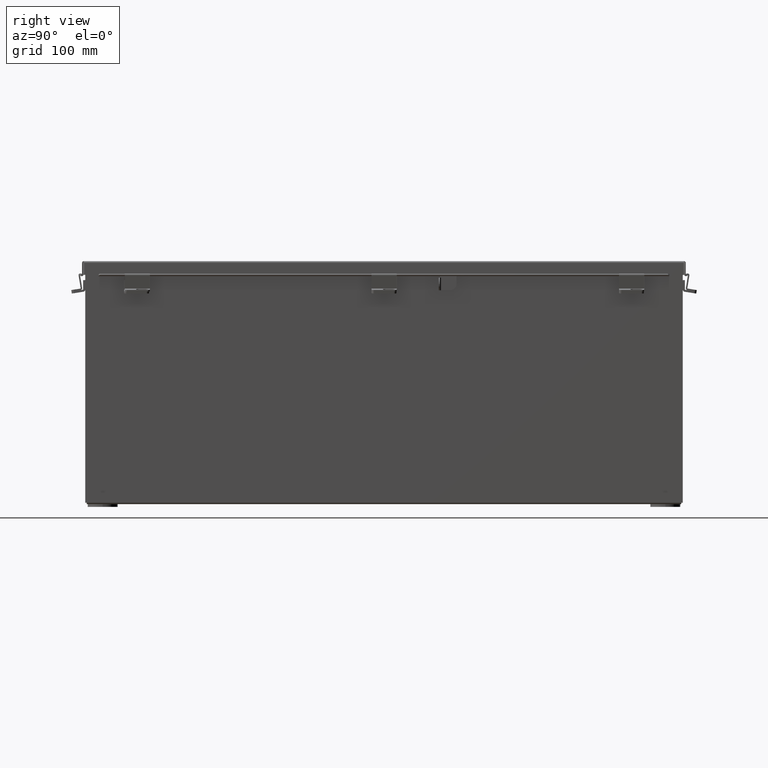
[diagram: clean part render]
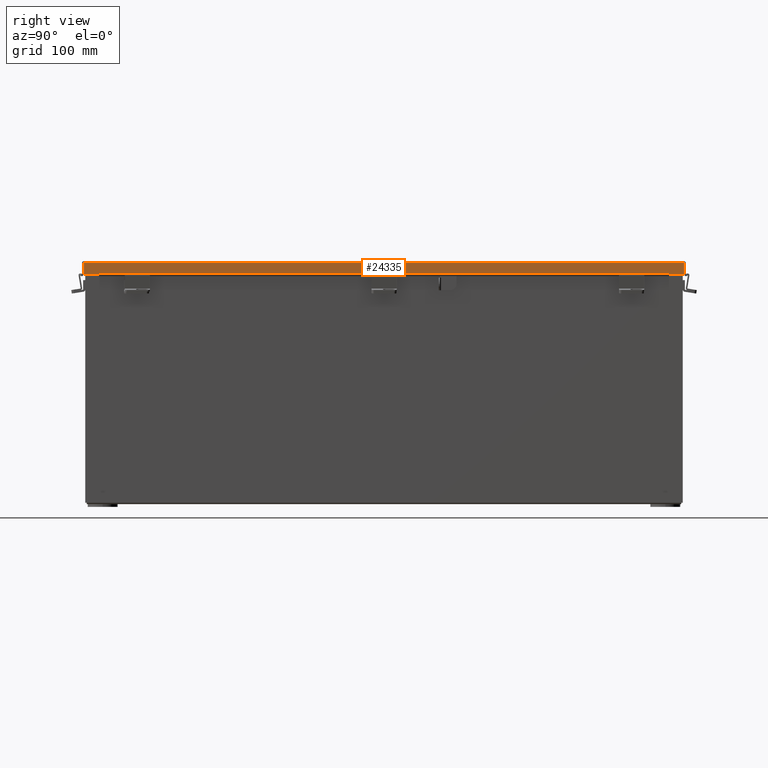
[diagram: same view with one face highlighted and labeled with its STEP entity id]
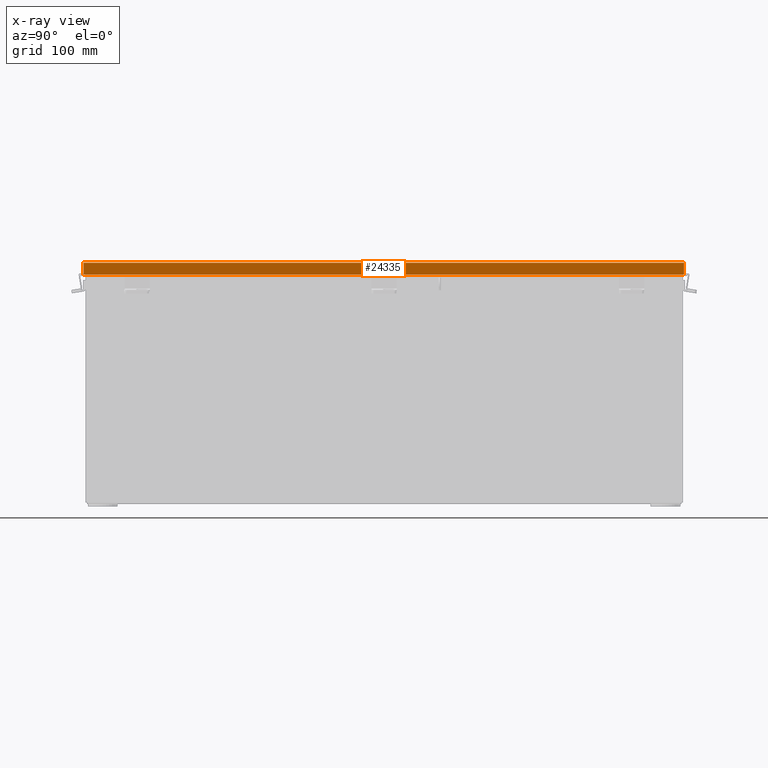
[diagram: x-ray of the same camera — body ghosted, the highlighted face saturated]
A machine part, right view. The second image highlights one B-rep face of the part: STEP entity #24335.
The next image is the same camera in x-ray: the body ghosted, the highlighted face saturated — about 0% of this face is hidden behind the body in this view.
In plain terms, the highlighted planar face has unit normal (-1, 0, -0).
Its self-contained STEP definition (entity closure, byte-faithful):
#71 = DIRECTION ( 'NONE',  ( -3.569293475308526100E-015, -0.0000000000000000000, 1.000000000000000000 ) ) ;
#115 = CARTESIAN_POINT ( 'NONE',  ( -6.156250000000000900, 14.32447893218813200, 0.5967115427318782100 ) ) ;
#259 = CARTESIAN_POINT ( 'NONE',  ( -6.156250000000000900, -14.32447893218813400, 0.6123000000000005100 ) ) ;
#756 = VECTOR ( 'NONE', #15261, 39.37007874015748100 ) ;
#1184 = ORIENTED_EDGE ( 'NONE', *, *, #9848, .T. ) ;
#1508 = VERTEX_POINT ( 'NONE', #5031 ) ;
#2043 = CARTESIAN_POINT ( 'NONE',  ( -6.156250000000003600, 14.32447893218813400, 0.6123000000000005100 ) ) ;
#2111 = CARTESIAN_POINT ( 'NONE',  ( -6.156249999999999100, 15.07447893218813400, 0.0000000000000000000 ) ) ;
#2228 = ORIENTED_EDGE ( 'NONE', *, *, #21120, .F. ) ;
#2264 = CARTESIAN_POINT ( 'NONE',  ( -6.156250000000000900, 0.0000000000000000000, 0.6123000000000005100 ) ) ;
#2369 = DIRECTION ( 'NONE',  ( -1.313000511771923600E-031, 1.000000000000000000, 3.604912816381708200E-017 ) ) ;
#3260 = ORIENTED_EDGE ( 'NONE', *, *, #14021, .F. ) ;
#3399 = VECTOR ( 'NONE', #26138, 39.37007874015748100 ) ;
#3556 = LINE ( 'NONE', #16554, #14949 ) ;
#4097 = DIRECTION ( 'NONE',  ( 2.102977566036104400E-013, -1.401985044024069700E-013, -1.000000000000000000 ) ) ;
#4498 = AXIS2_PLACEMENT_3D ( 'NONE', #24164, #11970, #26209 ) ;
#4617 = VERTEX_POINT ( 'NONE', #115 ) ;
#4859 = VERTEX_POINT ( 'NONE', #23198 ) ;
#5031 = CARTESIAN_POINT ( 'NONE',  ( -6.156250000000000900, -15.07447893218813400, 0.6123000000000005100 ) ) ;
#5033 = VECTOR ( 'NONE', #19937, 39.37007874015748100 ) ;
#5041 = VERTEX_POINT ( 'NONE', #5616 ) ;
#5616 = CARTESIAN_POINT ( 'NONE',  ( -6.156250000000000900, 15.07447893218813400, 0.6123000000000005100 ) ) ;
#5781 = CARTESIAN_POINT ( 'NONE',  ( -6.156250000000000000, -14.32447893218813400, 0.5967115427318782100 ) ) ;
#6632 = FACE_OUTER_BOUND ( 'NONE', #8671, .T. ) ;
#6802 = LINE ( 'NONE', #23359, #756 ) ;
#6854 = CARTESIAN_POINT ( 'NONE',  ( -6.156249999999999100, -15.07447893218813400, 0.01300000000000010700 ) ) ;
#7960 = CARTESIAN_POINT ( 'NONE',  ( -6.156250000000000900, 14.32447893218813400, 0.6123000000000005100 ) ) ;
#8384 = ORIENTED_EDGE ( 'NONE', *, *, #9152, .F. ) ;
#8671 = EDGE_LOOP ( 'NONE', ( #3260, #23710, #2228, #13704, #18985, #1184, #24879, #8384 ) ) ;
#9152 = EDGE_CURVE ( 'NONE', #4617, #16803, #6802, .T. ) ;
#9848 = EDGE_CURVE ( 'NONE', #1508, #12184, #11818, .T. ) ;
#10692 = EDGE_CURVE ( 'NONE', #16861, #4859, #3556, .T. ) ;
#11818 = LINE ( 'NONE', #2264, #17223 ) ;
#11970 = DIRECTION ( 'NONE',  ( 1.000000000000000000, -6.054808943399790500E-043, 3.569293475308526100E-015 ) ) ;
#12184 = VERTEX_POINT ( 'NONE', #259 ) ;
#12923 = EDGE_CURVE ( 'NONE', #17743, #5041, #18369, .T. ) ;
#13704 = ORIENTED_EDGE ( 'NONE', *, *, #10692, .F. ) ;
#13726 = VECTOR ( 'NONE', #71, 39.37007874015748100 ) ;
#14021 = EDGE_CURVE ( 'NONE', #17743, #4617, #21184, .T. ) ;
#14386 = DIRECTION ( 'NONE',  ( -4.879687452983731800E-043, 1.000000000000000000, 0.0000000000000000000 ) ) ;
#14949 = VECTOR ( 'NONE', #2369, 39.37007874015748100 ) ;
#15261 = DIRECTION ( 'NONE',  ( 4.879687452983731800E-043, -1.000000000000000000, -0.0000000000000000000 ) ) ;
#15972 = CARTESIAN_POINT ( 'NONE',  ( -6.156249999999999100, -15.07447893218813400, -2.185478394931410600E-014 ) ) ;
#16554 = CARTESIAN_POINT ( 'NONE',  ( -6.156249999999999100, 15.15625000000000000, 0.01300000000000010700 ) ) ;
#16803 = VERTEX_POINT ( 'NONE', #24883 ) ;
#16861 = VERTEX_POINT ( 'NONE', #6854 ) ;
#17223 = VECTOR ( 'NONE', #14386, 39.37007874015748100 ) ;
#17668 = EDGE_CURVE ( 'NONE', #16803, #12184, #25976, .T. ) ;
#17734 = VECTOR ( 'NONE', #25362, 39.37007874015748100 ) ;
#17743 = VERTEX_POINT ( 'NONE', #7960 ) ;
#18005 = PLANE ( 'NONE',  #4498 ) ;
#18369 = LINE ( 'NONE', #21272, #17734 ) ;
#18985 = ORIENTED_EDGE ( 'NONE', *, *, #26181, .T. ) ;
#19552 = LINE ( 'NONE', #15972, #3399 ) ;
#19779 = LINE ( 'NONE', #2111, #13726 ) ;
#19937 = DIRECTION ( 'NONE',  ( -1.401985044023989700E-013, -5.605193857299268300E-045, 1.000000000000000000 ) ) ;
#20546 = VECTOR ( 'NONE', #4097, 39.37007874015748100 ) ;
#21120 = EDGE_CURVE ( 'NONE', #4859, #5041, #19779, .T. ) ;
#21184 = LINE ( 'NONE', #2043, #20546 ) ;
#21272 = CARTESIAN_POINT ( 'NONE',  ( -6.156250000000000900, 0.0000000000000000000, 0.6123000000000005100 ) ) ;
#23198 = CARTESIAN_POINT ( 'NONE',  ( -6.156249999999999100, 15.07447893218813400, 0.01300000000000010700 ) ) ;
#23359 = CARTESIAN_POINT ( 'NONE',  ( -6.156250000000000000, 14.32447893218813400, 0.5967115427318782100 ) ) ;
#23710 = ORIENTED_EDGE ( 'NONE', *, *, #12923, .T. ) ;
#24164 = CARTESIAN_POINT ( 'NONE',  ( -6.156249999999999100, 0.0000000000000000000, -2.185478394931410600E-014 ) ) ;
#24335 = ADVANCED_FACE ( 'NONE', ( #6632 ), #18005, .F. ) ;
#24879 = ORIENTED_EDGE ( 'NONE', *, *, #17668, .F. ) ;
#24883 = CARTESIAN_POINT ( 'NONE',  ( -6.156250000000000900, -14.32447893218813400, 0.5967115427318782100 ) ) ;
#25362 = DIRECTION ( 'NONE',  ( -4.879687452983731800E-043, 1.000000000000000000, 0.0000000000000000000 ) ) ;
#25976 = LINE ( 'NONE', #5781, #5033 ) ;
#26138 = DIRECTION ( 'NONE',  ( -3.569293475308526100E-015, 0.0000000000000000000, 1.000000000000000000 ) ) ;
#26181 = EDGE_CURVE ( 'NONE', #16861, #1508, #19552, .T. ) ;
#26209 = DIRECTION ( 'NONE',  ( 3.569293475308526100E-015, 0.0000000000000000000, -1.000000000000000000 ) ) ;